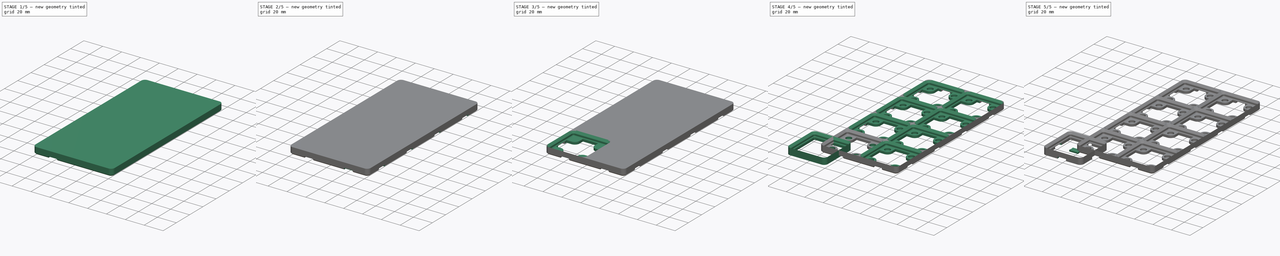
[diagram: build sequence overview — one tinted view per stage of 5, left to right]
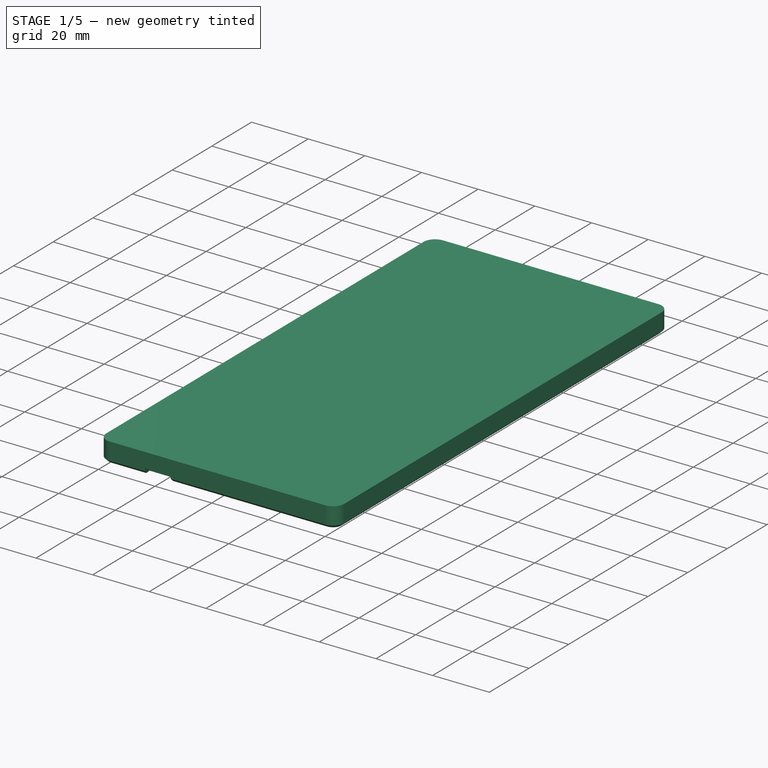
[diagram: stage 1 of 5 — iso view after this stage's code; geometry added in this stage tinted green]
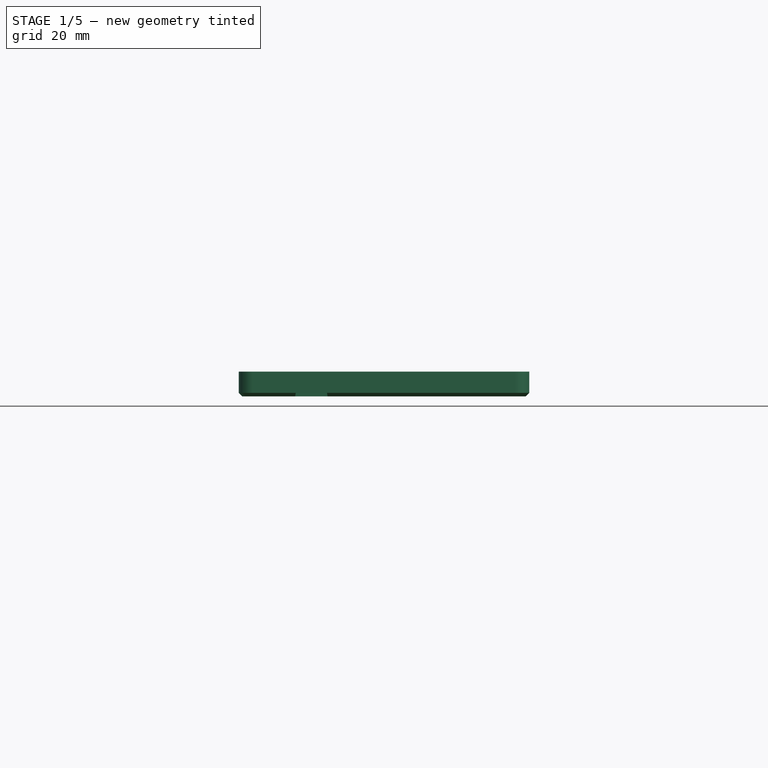
[diagram: stage 1 of 5 — front view after this stage's code; geometry added in this stage tinted green]
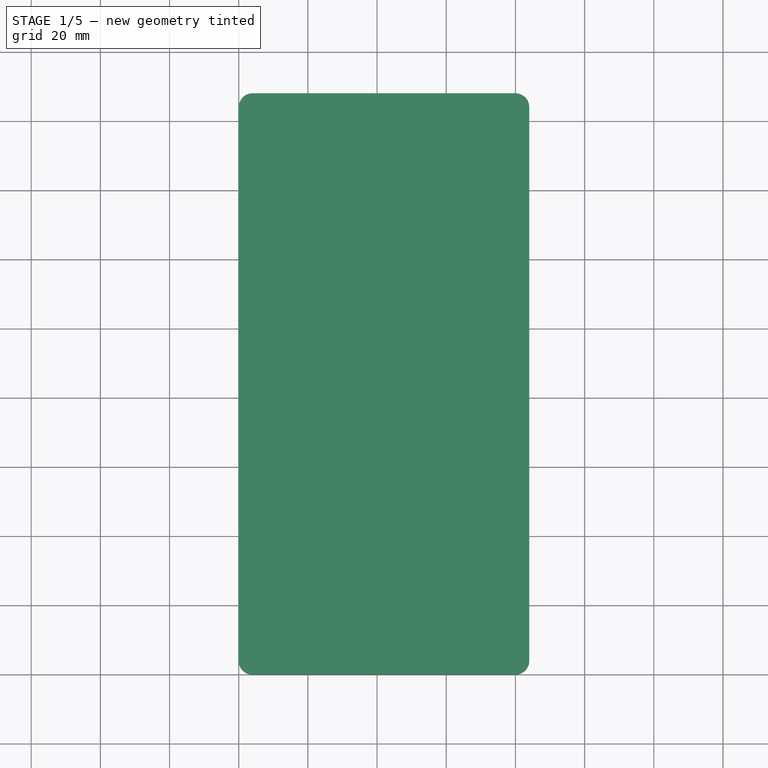
[diagram: stage 1 of 5 — top view after this stage's code; geometry added in this stage tinted green]
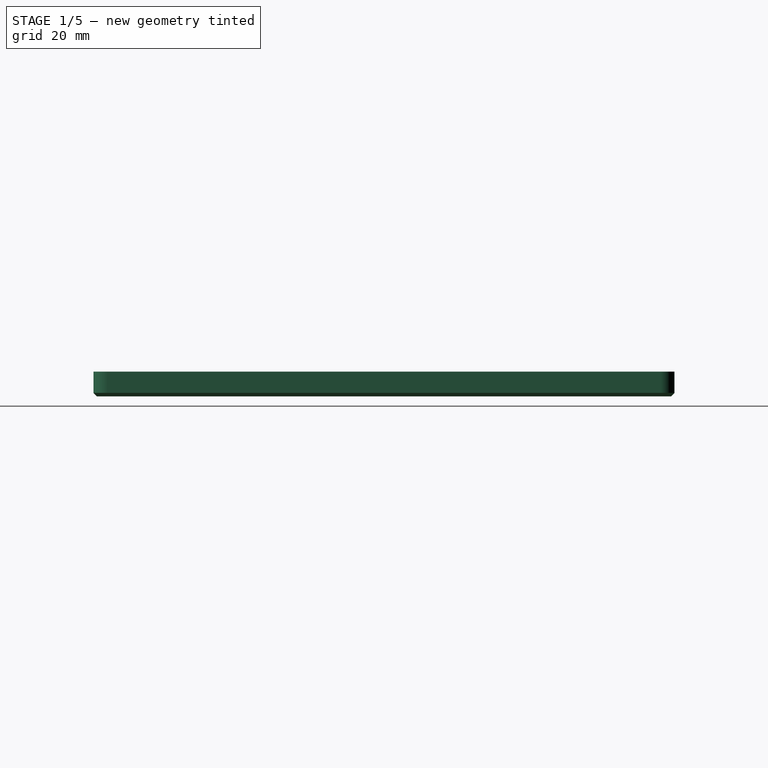
[diagram: stage 1 of 5 — right view after this stage's code; geometry added in this stage tinted green]
FCSTD DOCUMENT  (FreeCAD 0.20R29177 +426 (Git))
Label: Gridfinity-Fancy-Base
License: All rights reserved
LicenseURL: http://en.wikipedia.org/wiki/All_rights_reserved
objects: Sketcher::SketchObject×12, PartDesign::Pocket×5, PartDesign::LinearPattern×4, PartDesign::Pad×3, PartDesign::Body×3, PartDesign::Chamfer×2, PartDesign::AdditivePipe×1, Spreadsheet::Sheet×1, PartDesign::SubtractivePipe×1, PartDesign::MultiTransform×1
note: 44 computed .brp shape members not serialized (recipe doc carries the construction recipe); baked Part::Feature solids carry a one-line shape summary decoded from their .brp

FEATURE [PartDesign::Body] Body  label="1x1 Base"
  Group = -> [Sketch,Sketch001,AdditivePipe,Sketch004,Pocket]
  Origin = -> Origin
  Tip = -> Pocket
FEATURE [Sketcher::SketchObject] Sketch006  label="ParameterizedBasePath"
  FullyConstrained = true
  MapMode = 5
  Support = -> [XY_Plane004]
  expr: Constraints[22] = Spreadsheet.overall_x
  expr: Constraints[23] = Spreadsheet.overall_y
  sketch-geometry (10):
    g0: ArcOfCircle CenterX=4 CenterY=164 CenterZ=0 NormalX=0 NormalY=0 NormalZ=1 AngleXU=0 Radius=4 StartAngle=1.5708 EndAngle=3.14159
    g1: LineSegment StartX=4 StartY=168 StartZ=0 EndX=80 EndY=168 EndZ=0
    g2: ArcOfCircle CenterX=80 CenterY=164 CenterZ=0 NormalX=0 NormalY=0 NormalZ=1 AngleXU=0 Radius=4 StartAngle=-1.8e-15 EndAngle=1.5708
    g3: LineSegment StartX=84 StartY=164 StartZ=0 EndX=84 EndY=4 EndZ=0
    g4: ArcOfCircle CenterX=80 CenterY=4 CenterZ=0 NormalX=0 NormalY=0 NormalZ=1 AngleXU=0 Radius=4 StartAngle=4.71239 EndAngle=6.28319
    g5: LineSegment StartX=80 StartY=0 StartZ=0 EndX=4 EndY=0 EndZ=0
    g6: ArcOfCircle CenterX=4 CenterY=4 CenterZ=0 NormalX=0 NormalY=0 NormalZ=1 AngleXU=0 Radius=4 StartAngle=3.14159 EndAngle=4.71239
    g7: LineSegment StartX=0 StartY=4 StartZ=0 EndX=0 EndY=164 EndZ=0
    g8: GeomPoint X=0 Y=168 Z=0
    g9: GeomPoint X=84 Y=0 Z=0
  constraints (24):
    c: Tangent(g0,g1) = 1.5708
    c: Tangent(g1,g2) = 1.5708
    c: Tangent(g2,g3) = 1.5708
    c: Tangent(g3,g4) = 1.5708
    c: Tangent(g4,g5) = 1.5708
    c: Tangent(g5,g6) = 1.5708
    c: Tangent(g6,g7) = 1.5708
    c: Tangent(g7,g0) = 1.5708
    c: Horizontal(g1)
    c: Horizontal(g5)
    c: Vertical(g3)
    c: Vertical(g7)
    c: Equal(g0,g2)
    c: Equal(g2,g4)
    c: Equal(g4,g6)
    c: PointOnObject(g8,g1)
    c: PointOnObject(g8,g7)
    c: PointOnObject(g9,g3)
    c: PointOnObject(g9,g5)
    c: DistanceX(g4,g3) = 4
    c: DistanceX(g-1,g6) = 0
    c: DistanceY(g-1,g5) = 0
    c: DistanceX(g6,g3) = 84
    c: DistanceY(g5,g0) = 168
FEATURE [PartDesign::Pad] Pad001
  Direction = (0,0,1)
  Length = 7.15
  Length2 = 10
  Profile = -> Sketch006
  ReferenceAxis = -> Sketch006 [N_Axis]
  Type = 0
FEATURE [Sketcher::SketchObject] Sketch009  label="Path"
  AttachmentOffset = pos=(0,0,7.15) rot=(0,0,1;0rad)
  FullyConstrained = true
  MapMode = 2
  Placement = pos=(0,0,7.15) rot=(0,0,1;0rad)
  Support = -> [XY_Plane004]
  sketch-geometry (8):
    g0: ArcOfCircle CenterX=38 CenterY=38 CenterZ=0 NormalX=0 NormalY=0 NormalZ=1 AngleXU=0 Radius=4 StartAngle=4e-16 EndAngle=1.5708
    g1: LineSegment StartX=42 StartY=38 StartZ=0 EndX=42 EndY=4 EndZ=0
    g2: ArcOfCircle CenterX=38 CenterY=4 CenterZ=0 NormalX=0 NormalY=0 NormalZ=1 AngleXU=0 Radius=4 StartAngle=4.71239 EndAngle=6.28319
    g3: LineSegment StartX=38 StartY=0 StartZ=0 EndX=4 EndY=0 EndZ=0
    g4: ArcOfCircle CenterX=4 CenterY=4 CenterZ=0 NormalX=0 NormalY=0 NormalZ=1 AngleXU=0 Radius=4 StartAngle=3.14159 EndAngle=4.71239
    g5: LineSegment StartX=3.91e-14 StartY=4 StartZ=0 EndX=3.91e-14 EndY=38 EndZ=0
    g6: ArcOfCircle CenterX=4 CenterY=38 CenterZ=0 NormalX=0 NormalY=0 NormalZ=1 AngleXU=0 Radius=4 StartAngle=1.5708 EndAngle=3.14159
    g7: LineSegment StartX=4 StartY=42 StartZ=0 EndX=38 EndY=42 EndZ=0
  constraints (20):
    c: Tangent(g0,g1) = 1.5708
    c: Tangent(g1,g2) = 1.5708
    c: Tangent(g2,g3) = 1.5708
    c: Tangent(g3,g4) = 1.5708
    c: Tangent(g4,g5) = 1.5708
    c: Tangent(g5,g6) = 1.5708
    c: Tangent(g6,g7) = 1.5708
    c: Tangent(g7,g0) = 1.5708
    c: Horizontal(g3)
    c: Horizontal(g7)
    c: Vertical(g1)
    c: Vertical(g5)
    c: Equal(g0,g2)
    c: Equal(g2,g4)
    c: Equal(g4,g6)
    c: Radius(g6) = 4
    c: DistanceX(g5,g0) = 42
    c: DistanceY(g3,g6) = 42
    c: DistanceY(g3,g-1) = 0
    c: DistanceX(g4,g-1) = 0
FEATURE [Sketcher::SketchObject] Sketch010  label="NegativeProfile"
  AttachmentOffset = pos=(0,-7.15,-16) rot=(0,0,1;0rad)
  FullyConstrained = true
  MapMode = 3
  Placement = pos=(0,16,-3.6e-15) rot=(1,0,0;1.5708rad)
  Support = -> [Sketch009]
  sketch-geometry (5):
    g0: LineSegment StartX=0 StartY=7.15 StartZ=0 EndX=2.15 EndY=5 EndZ=0
    g1: LineSegment StartX=2.15 StartY=5 StartZ=0 EndX=2.15 EndY=3.2 EndZ=0
    g2: LineSegment StartX=2.15 StartY=3.2 StartZ=0 EndX=2.85 EndY=2.5 EndZ=0
    g3: LineSegment StartX=2.85 StartY=7.15 StartZ=0 EndX=0 EndY=7.15 EndZ=0
    g4: LineSegment StartX=2.85 StartY=2.5 StartZ=0 EndX=2.85 EndY=7.15 EndZ=0
  constraints (15):
    c: Coincident(g1,g0)
    c: Vertical(g1)
    c: Coincident(g2,g1)
    c: Distance(g1) = 1.8
    c: DistanceY(g2,g1) = 0.7
    c: DistanceY(g0,g0) = 2.15
    c: Coincident(g3,g0)
    c: Horizontal(g3)
    c: Angle(g0,g1) = 2.35619
    c: DistanceX(g0,g-1) = 0
    c: DistanceY(g-1,g0) = 7.15
    c: DistanceX(g1,g2) = 0.7
    c: Coincident(g4,g2)
    c: Coincident(g4,g3)
    c: Vertical(g4)
FEATURE [Sketcher::SketchObject] Sketch011  label="Dovetail_YAxis"
  FullyConstrained = true
  MapMode = 5
  Support = -> [XY_Plane004]
  expr: Constraints[10] = 90 - Spreadsheet.dovetail_angle
  expr: Constraints[14] = Spreadsheet.overall_y
  expr: Constraints[22] = 90 - Spreadsheet.dovetail_angle
  expr: Constraints[23] = 90 - Spreadsheet.dovetail_angle
  sketch-geometry (8):
    g0: LineSegment StartX=25.5231 StartY=-2.1668e-12 StartZ=0 EndX=16.4769 EndY=-2.1668e-12 EndZ=0
    g1: LineSegment StartX=16.4769 StartY=168 StartZ=0 EndX=25.5231 EndY=168 EndZ=0
    g2: LineSegment StartX=16 StartY=165.15 StartZ=0 EndX=26 EndY=165.15 EndZ=0
    g3: LineSegment StartX=16.4769 StartY=-2.1668e-12 StartZ=0 EndX=16 EndY=2.85 EndZ=0
    g4: LineSegment StartX=25.5231 StartY=-2.1668e-12 StartZ=0 EndX=26 EndY=2.85 EndZ=0
    g5: LineSegment StartX=26 StartY=2.85 StartZ=0 EndX=16 EndY=2.85 EndZ=0
    g6: LineSegment StartX=16.4769 StartY=168 StartZ=0 EndX=16 EndY=165.15 EndZ=0
    g7: LineSegment StartX=25.5231 StartY=168 StartZ=0 EndX=26 EndY=165.15 EndZ=0
  constraints (24):
    c: Horizontal(g0)
    c: Horizontal(g1)
    c: Horizontal(g2)
    c: Equal(g1,g0)
    c: Coincident(g3,g0)
    c: Coincident(g4,g0)
    c: Coincident(g5,g4)
    c: Coincident(g5,g3)
    c: Horizontal(g5)
    c: Equal(g5,g2)
    c: Angle(g5,g4) = 1.40499
    c: Equal(g4,g3)
    c: Distance(g2) = 10
    c: Distance(g0,g5) = 2.85
    c: DistanceY(g0,g1) = 168
    c: DistanceY(g0,g-1) = 0
    c: DistanceX(g-1,g3) = 16
    c: DistanceX(g-1,g2) = 16
    c: Coincident(g6,g1)
    c: Coincident(g6,g2)
    c: Coincident(g7,g1)
    c: Coincident(g7,g2)
    c: Angle(g2,g6) = 1.40499
    c: Angle(g7,g2) = 1.40499
FEATURE [Sketcher::SketchObject] Sketch012  label="Dovetail_XAxis"
  FullyConstrained = true
  MapMode = 5
  Support = -> [XY_Plane004]
  expr: Constraints[15] = Spreadsheet.overall_x
  expr: Constraints[18] = 90 - Spreadsheet.dovetail_angle
  expr: Constraints[20] = 90 - Spreadsheet.dovetail_angle
  expr: Constraints[22] = 90 - Spreadsheet.dovetail_angle
  sketch-geometry (8):
    g0: LineSegment StartX=84 StartY=25.5231 StartZ=0 EndX=84 EndY=16.4769 EndZ=0
    g1: LineSegment StartX=1.1282e-12 StartY=25.5231 StartZ=0 EndX=1.1282e-12 EndY=16.4769 EndZ=0
    g2: LineSegment StartX=2.85 StartY=26 StartZ=0 EndX=2.85 EndY=16 EndZ=0
    g3: LineSegment StartX=81.15 StartY=26 StartZ=0 EndX=81.15 EndY=16 EndZ=0
    g4: LineSegment StartX=81.15 StartY=16 StartZ=0 EndX=84 EndY=16.4769 EndZ=0
    g5: LineSegment StartX=84 StartY=25.5231 StartZ=0 EndX=81.15 EndY=26 EndZ=0
    g6: LineSegment StartX=2.85 StartY=26 StartZ=0 EndX=1.128e-12 EndY=25.5231 EndZ=0
    g7: LineSegment StartX=1.1282e-12 StartY=16.4769 StartZ=0 EndX=2.85 EndY=16 EndZ=0
  constraints (24):
    c: Vertical(g0)
    c: Vertical(g1)
    c: Vertical(g2)
    c: Vertical(g3)
    c: Coincident(g4,g3)
    c: Coincident(g4,g0)
    c: Coincident(g5,g0)
    c: Coincident(g5,g3)
    c: Coincident(g6,g2)
    c: Coincident(g6,g1)
    c: Coincident(g7,g1)
    c: Coincident(g7,g2)
    c: Equal(g1,g0)
    c: Equal(g2,g3)
    c: Distance(g2) = 10
    c: DistanceX(g1,g0) = 84
    c: DistanceX(g1,g-1) = 0
    c: Distance(g0,g3) = 2.85
    c: Angle(g6,g2) = 1.40499
    c: Distance(g1,g2) = 2.85
    c: Angle(g2,g7) = 1.40499
    c: DistanceY(g-1,g2) = 16
    c: Angle(g4,g3) = 1.40499
    c: DistanceY(g-1,g3) = 16
FEATURE [PartDesign::Chamfer] Chamfer001
  Angle = 45
  Base = -> Pad001 [Edge9,Edge6,Edge12,Edge15,Edge18,Edge21,Edge23,Edge3]
  BaseFeature = -> Pad001
  ChamferType = 0
  FlipDirection = false
  Size = 1
  Size2 = 1
  SupportTransform = false
  UseAllEdges = false
FEATURE [PartDesign::Pocket] Pocket001  label="Dovetail_Y"
  BaseFeature = -> Chamfer001
  Direction = (0,0,-1)
  Length = 2
  Length2 = 5
  Profile = -> Sketch011
  ReferenceAxis = -> Sketch011 [N_Axis]
  Reversed = true
  Type = 0
  expr: Length = Spreadsheet.dovetail_thickness
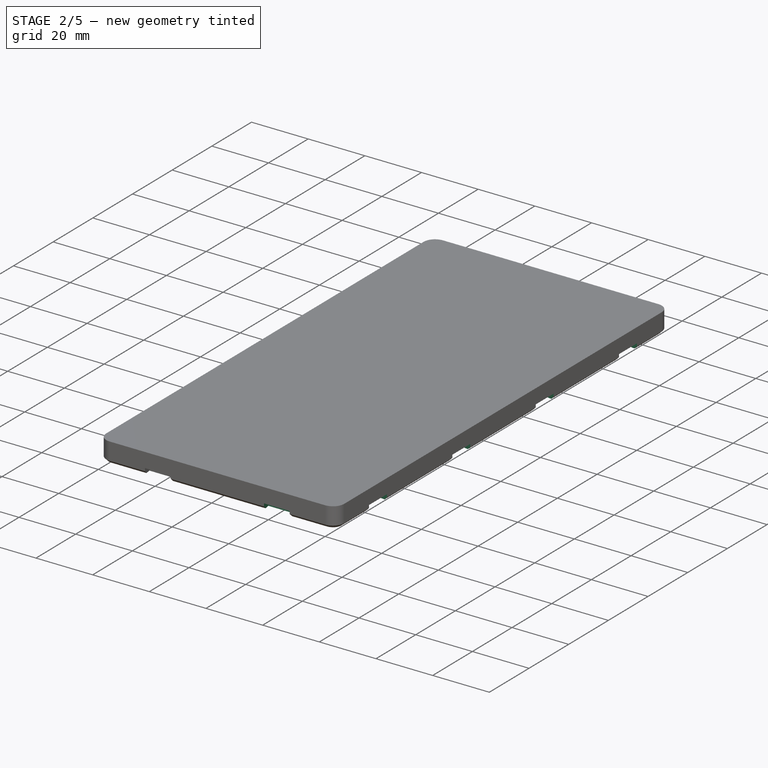
[diagram: stage 2 of 5 — iso view after this stage's code; geometry added in this stage tinted green]
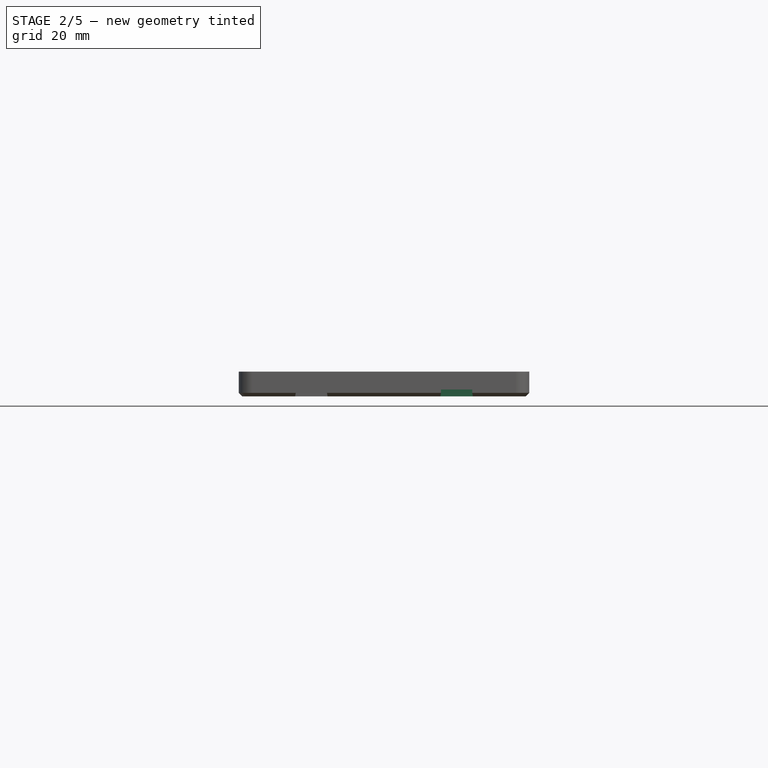
[diagram: stage 2 of 5 — front view after this stage's code; geometry added in this stage tinted green]
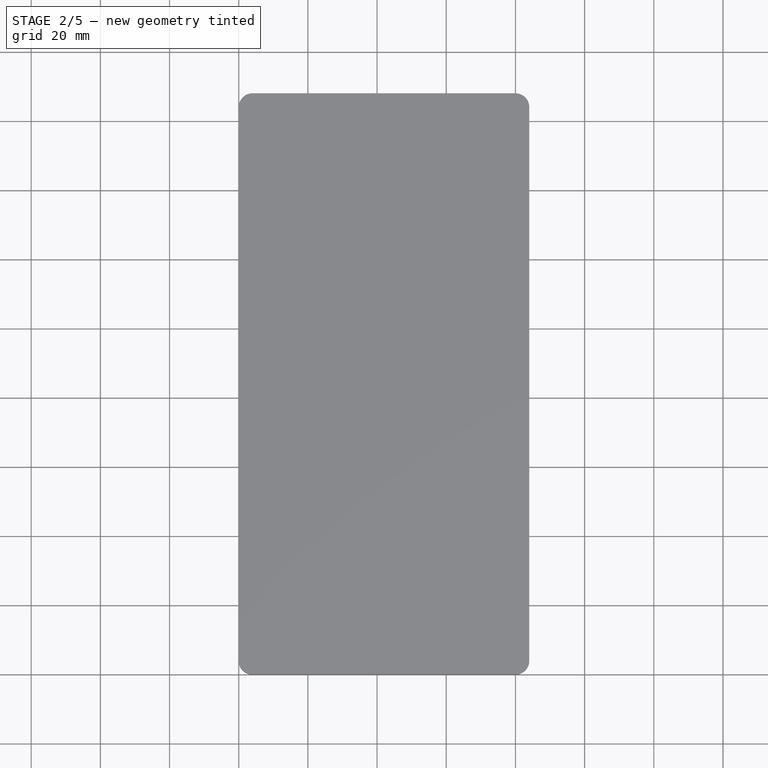
[diagram: stage 2 of 5 — top view after this stage's code; geometry added in this stage tinted green]
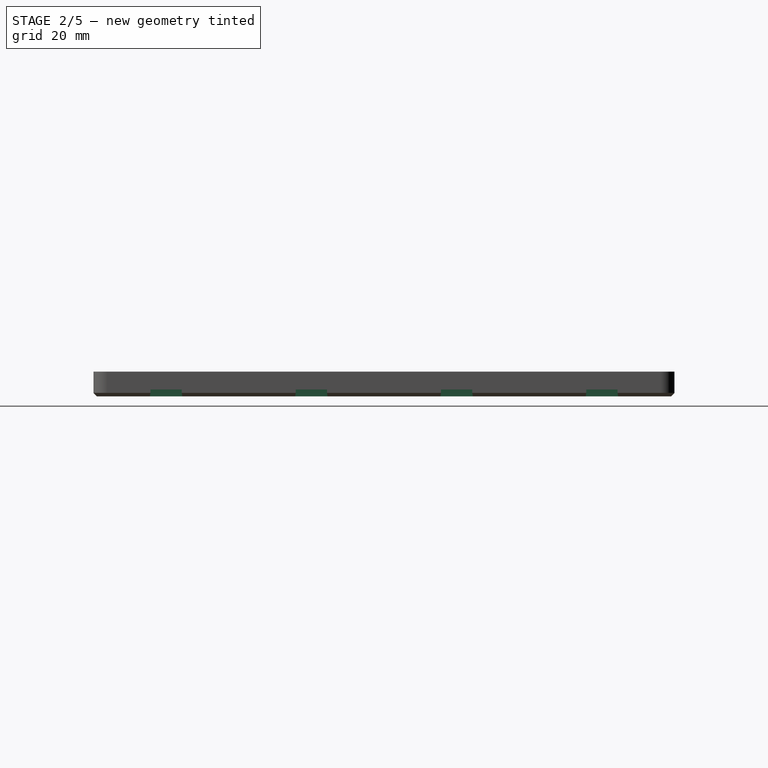
[diagram: stage 2 of 5 — right view after this stage's code; geometry added in this stage tinted green]
FEATURE [PartDesign::Pocket] Pocket002  label="Dovetail_X"
  BaseFeature = -> Pocket001
  Direction = (0,0,-1)
  Length = 2
  Length2 = 5
  Profile = -> Sketch012
  ReferenceAxis = -> Sketch012 [N_Axis]
  Reversed = true
  Type = 0
  expr: Length = Spreadsheet.dovetail_thickness
FEATURE [Sketcher::SketchObject] Sketch013
  AttachmentOffset = pos=(0,0,7.15) rot=(0,0,1;0rad)
  FullyConstrained = true
  MapMode = 5
  Placement = pos=(0,0,7.15) rot=(0,0,1;0rad)
  Support = -> [XY_Plane004]
  expr: Constraints[19] = 42 - (2.15 + 0.7) * 2
  expr: Constraints[20] = 2.15 + 0.7
  expr: Constraints[21] = 2.15 + 0.7
  expr: Constraints[22] = 42 - (2.15 + 0.7) * 2
  sketch-geometry (10):
    g0: ArcOfCircle CenterX=4 CenterY=4 CenterZ=0 NormalX=0 NormalY=0 NormalZ=1 AngleXU=0 Radius=1.15 StartAngle=3.14159 EndAngle=4.71239
    g1: LineSegment StartX=2.85 StartY=4 StartZ=0 EndX=2.85 EndY=38 EndZ=0
    g2: ArcOfCircle CenterX=4 CenterY=38 CenterZ=0 NormalX=0 NormalY=0 NormalZ=1 AngleXU=0 Radius=1.15 StartAngle=1.5708 EndAngle=3.14159
    g3: LineSegment StartX=4 StartY=39.15 StartZ=0 EndX=38 EndY=39.15 EndZ=0
    g4: ArcOfCircle CenterX=38 CenterY=38 CenterZ=0 NormalX=0 NormalY=0 NormalZ=1 AngleXU=0 Radius=1.15 StartAngle=3e-15 EndAngle=1.5708
    g5: LineSegment StartX=39.15 StartY=38 StartZ=0 EndX=39.15 EndY=4 EndZ=0
    g6: ArcOfCircle CenterX=38 CenterY=4 CenterZ=0 NormalX=0 NormalY=0 NormalZ=1 AngleXU=0 Radius=1.15 StartAngle=4.71239 EndAngle=6.28319
    g7: LineSegment StartX=38 StartY=2.85 StartZ=0 EndX=4 EndY=2.85 EndZ=0
    g8: GeomPoint X=2.85 Y=2.85 Z=0
    g9: GeomPoint X=39.15 Y=39.15 Z=0
  constraints (24):
    c: Tangent(g0,g1) = 1.5708
    c: Tangent(g1,g2) = 1.5708
    c: Tangent(g2,g3) = 1.5708
    c: Tangent(g3,g4) = 1.5708
    c: Tangent(g4,g5) = 1.5708
    c: Tangent(g5,g6) = 1.5708
    c: Tangent(g6,g7) = 1.5708
    c: Tangent(g7,g0) = 1.5708
    c: Horizontal(g3)
    c: Horizontal(g7)
    c: Vertical(g1)
    c: Vertical(g5)
    c: Equal(g0,g2)
    c: Equal(g2,g4)
    c: Equal(g4,g6)
    c: PointOnObject(g8,g1)
    c: PointOnObject(g8,g7)
    c: PointOnObject(g9,g3)
    c: PointOnObject(g9,g5)
    c: DistanceX(g1,g4) = 36.3
    c: DistanceX(g-1,g0) = 2.85
    c: DistanceY(g-1,g0) = 2.85
    c: DistanceY(g6,g3) = 36.3
    c: Diameter(g6) = 2.3
FEATURE [Sketcher::SketchObject] Sketch014
  AttachmentOffset = pos=(0,0,2.5) rot=(0,0,1;0rad)
  FullyConstrained = true
  MapMode = 5
  Placement = pos=(0,0,2.5) rot=(0,0,1;0rad)
  Support = -> [XY_Plane004]
  expr: Constraints[3] = Spreadsheet.magnet_dia + Spreadsheet.print_tolerance
  sketch-geometry (4):
    g0: Circle CenterX=8 CenterY=34 CenterZ=0 NormalX=0 NormalY=0 NormalZ=1 AngleXU=0 Radius=3.1
    g1: Circle CenterX=34 CenterY=34 CenterZ=0 NormalX=0 NormalY=0 NormalZ=1 AngleXU=0 Radius=3.1
    g2: Circle CenterX=34 CenterY=8 CenterZ=0 NormalX=0 NormalY=0 NormalZ=1 AngleXU=0 Radius=3.1
    g3: Circle CenterX=8 CenterY=8 CenterZ=0 NormalX=0 NormalY=0 NormalZ=1 AngleXU=0 Radius=3.1
  constraints (12):
    c: Equal(g0,g1)
    c: Equal(g1,g2)
    c: Equal(g2,g3)
    c: Diameter(g0) = 6.2
    c: DistanceX(g-1,g3) = 8
    c: DistanceY(g-1,g3) = 8
    c: DistanceY(g-1,g2) = 8
    c: DistanceX(g-1,g2) = 34
    c: DistanceX(g-1,g0) = 8
    c: DistanceY(g-1,g0) = 34
    c: DistanceY(g-1,g1) = 34
    c: DistanceX(g-1,g1) = 34
FEATURE [Sketcher::SketchObject] Sketch015
  FullyConstrained = true
  MapMode = 5
  Support = -> [XY_Plane004]
  sketch-geometry (20):
    g0: LineSegment StartX=2 StartY=29 StartZ=0 EndX=8 EndY=29 EndZ=0
    g1: LineSegment StartX=13 StartY=40 StartZ=0 EndX=13 EndY=34 EndZ=0
    g2: LineSegment StartX=13 StartY=40 StartZ=0 EndX=2 EndY=40 EndZ=0
    g3: LineSegment StartX=2 StartY=40 StartZ=0 EndX=2 EndY=29 EndZ=0
    g4: ArcOfCircle CenterX=8 CenterY=34 CenterZ=0 NormalX=0 NormalY=0 NormalZ=1 AngleXU=0 Radius=5 StartAngle=4.71239 EndAngle=6.28319
    g5: LineSegment StartX=29 StartY=40 StartZ=0 EndX=40 EndY=40 EndZ=0
    g6: LineSegment StartX=40 StartY=40 StartZ=0 EndX=40 EndY=29 EndZ=0
    g7: LineSegment StartX=40 StartY=29 StartZ=0 EndX=34 EndY=29 EndZ=0
    g8: LineSegment StartX=29 StartY=40 StartZ=0 EndX=29 EndY=34 EndZ=0
    g9: LineSegment StartX=29 StartY=8 StartZ=0 EndX=29 EndY=2 EndZ=0
    g10: LineSegment StartX=29 StartY=2 StartZ=0 EndX=40 EndY=2 EndZ=0
    g11: LineSegment StartX=40 StartY=2 StartZ=0 EndX=40 EndY=13 EndZ=0
    g12: LineSegment StartX=40 StartY=13 StartZ=0 EndX=34 EndY=13 EndZ=0
    g13: LineSegment StartX=13 StartY=8 StartZ=0 EndX=13 EndY=2 EndZ=0
    g14: LineSegment StartX=13 StartY=2 StartZ=0 EndX=2 EndY=2 EndZ=0
    g15: LineSegment StartX=2 StartY=2 StartZ=0 EndX=2 EndY=13 EndZ=0
    g16: LineSegment StartX=2 StartY=13 StartZ=0 EndX=8 EndY=13 EndZ=0
    g17: ArcOfCircle CenterX=8 CenterY=8 CenterZ=0 NormalX=0 NormalY=0 NormalZ=1 AngleXU=0 Radius=5 StartAngle=2e-16 EndAngle=1.5708
    g18: ArcOfCircle CenterX=34 CenterY=8 CenterZ=0 NormalX=0 NormalY=0 NormalZ=1 AngleXU=0 Radius=5 StartAngle=1.5708 EndAngle=3.14159
    g19: ArcOfCircle CenterX=34 CenterY=34 CenterZ=0 NormalX=0 NormalY=0 NormalZ=1 AngleXU=0 Radius=5 StartAngle=3.14159 EndAngle=4.71239
  constraints (64):
    c: Horizontal(g0)
    c: Vertical(g1)
    c: Coincident(g2,g1)
    c: Horizontal(g2)
    c: Coincident(g3,g2)
    c: Coincident(g3,g0)
    c: Vertical(g3)
    c: Coincident(g4,g0)
    c: Coincident(g4,g1)
    c: DistanceX(g-1,g4) = 8
    c: DistanceY(g-1,g4) = 34
    c: DistanceX(g-1,g0) = 8
    c: DistanceY(g-1,g1) = 34
    c: DistanceX(g-1,g1) = 13
    c: Equal(g0,g1)
    c: Distance(g2) = 11
    c: Horizontal(g5)
    c: Coincident(g6,g5)
    c: Vertical(g6)
    c: Coincident(g7,g6)
    c: Horizontal(g7)
    c: Coincident(g8,g5)
    c: Vertical(g8)
    c: Vertical(g9)
    c: Coincident(g10,g9)
    c: Horizontal(g10)
    c: Coincident(g11,g10)
    c: Vertical(g11)
    c: Coincident(g12,g11)
    c: Horizontal(g12)
    c: Vertical(g13)
    c: Coincident(g14,g13)
    c: Horizontal(g14)
    c: Coincident(g15,g14)
    c: Vertical(g15)
    c: Coincident(g16,g15)
    c: Horizontal(g16)
    c: Coincident(g17,g13)
    c: Coincident(g17,g16)
    c: Coincident(g18,g9)
    c: Coincident(g18,g12)
    c: Coincident(g19,g7)
    c: Coincident(g19,g8)
    c: Equal(g2,g5)
    c: Equal(g5,g10)
    c: Equal(g10,g14)
    c: Equal(g4,g19)
    c: Equal(g19,g18)
    c: Equal(g18,g17)
    c: DistanceX(g-1,g17) = 8
    c: DistanceY(g-1,g17) = 8
    c: DistanceY(g-1,g18) = 8
    c: DistanceX(g-1,g18) = 34
    c: DistanceX(g-1,g19) = 34
    c: DistanceY(g-1,g19) = 34
    c: Equal(g13,g16)
    c: Equal(g16,g0)
    c: Equal(g0,g8)
    c: Equal(g8,g7)
    c: Equal(g7,g12)
    c: Equal(g12,g9)
    c: Equal(g6,g5)
    c: Equal(g5,g11)
    c: Equal(g11,g15)
FEATURE [PartDesign::LinearPattern] LinearPattern002
  Direction = -> X_Axis003
  Length = 42
  Occurrences = 2
  expr: Length = Spreadsheet.scaled_x
  expr: Occurrences = Spreadsheet.x_count
FEATURE [PartDesign::LinearPattern] LinearPattern003
  Direction = -> Y_Axis003
  Length = 126
  Occurrences = 4
  expr: Length = Spreadsheet.scaled_y
  expr: Occurrences = Spreadsheet.y_count
FEATURE [PartDesign::LinearPattern] LinearPattern
  BaseFeature = -> Pocket002
  Direction = -> Y_Axis003
  Length = 126
  Occurrences = 4
  Originals = -> [Pocket002]
  expr: Length = Spreadsheet.scaled_y
  expr: Occurrences = Spreadsheet.y_count
FEATURE [PartDesign::LinearPattern] LinearPattern001
  BaseFeature = -> LinearPattern
  Direction = -> X_Axis003
  Length = 42
  Occurrences = 2
  Originals = -> [Pocket001]
  expr: Length = Spreadsheet.scaled_x
  expr: Occurrences = Spreadsheet.x_count
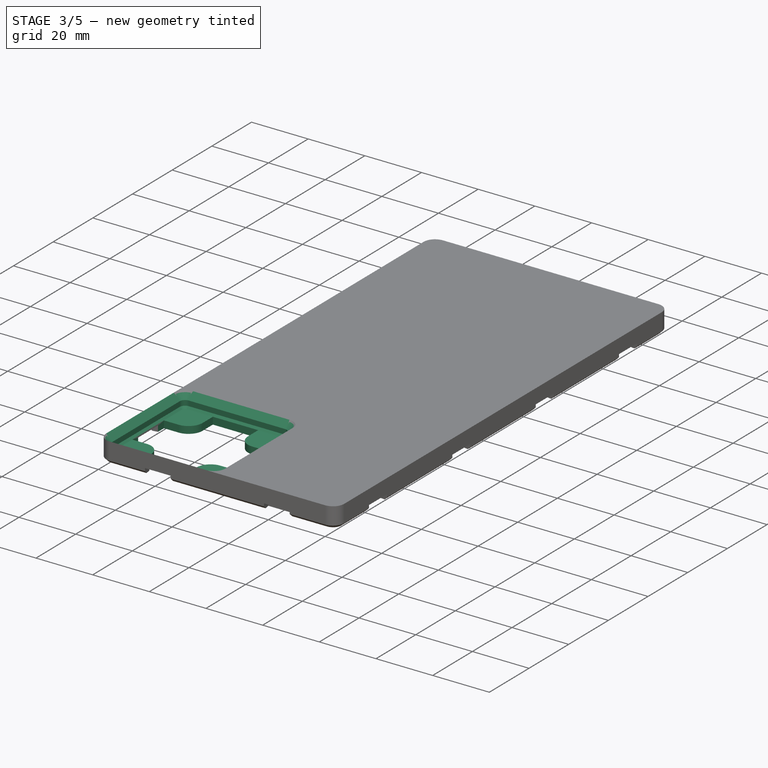
[diagram: stage 3 of 5 — iso view after this stage's code; geometry added in this stage tinted green]
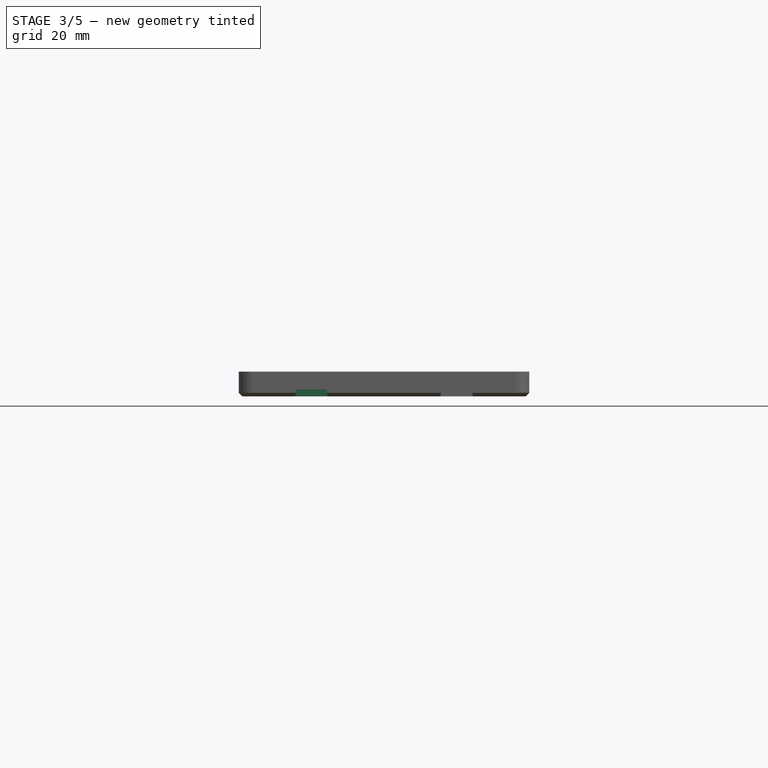
[diagram: stage 3 of 5 — front view after this stage's code; geometry added in this stage tinted green]
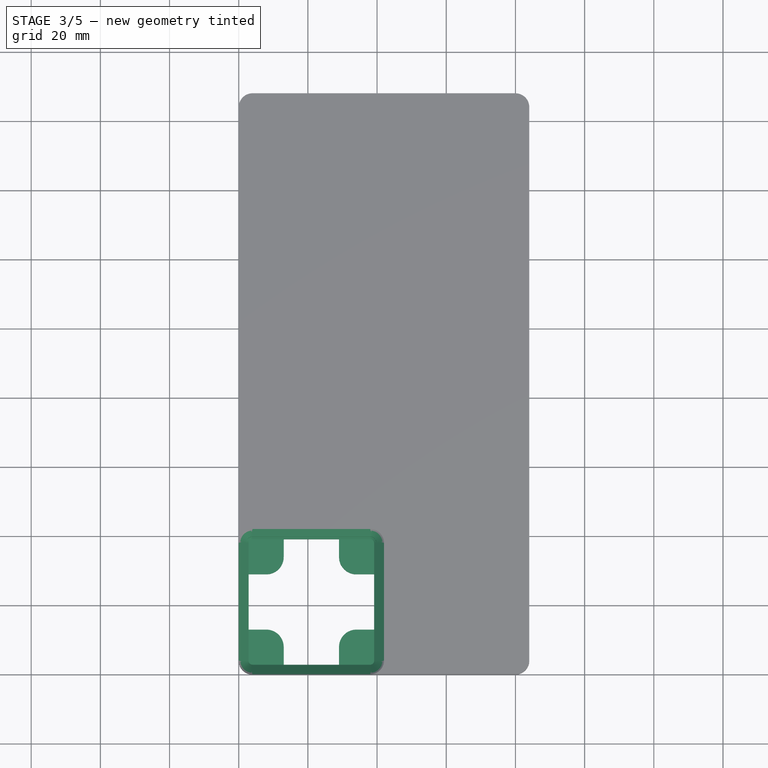
[diagram: stage 3 of 5 — top view after this stage's code; geometry added in this stage tinted green]
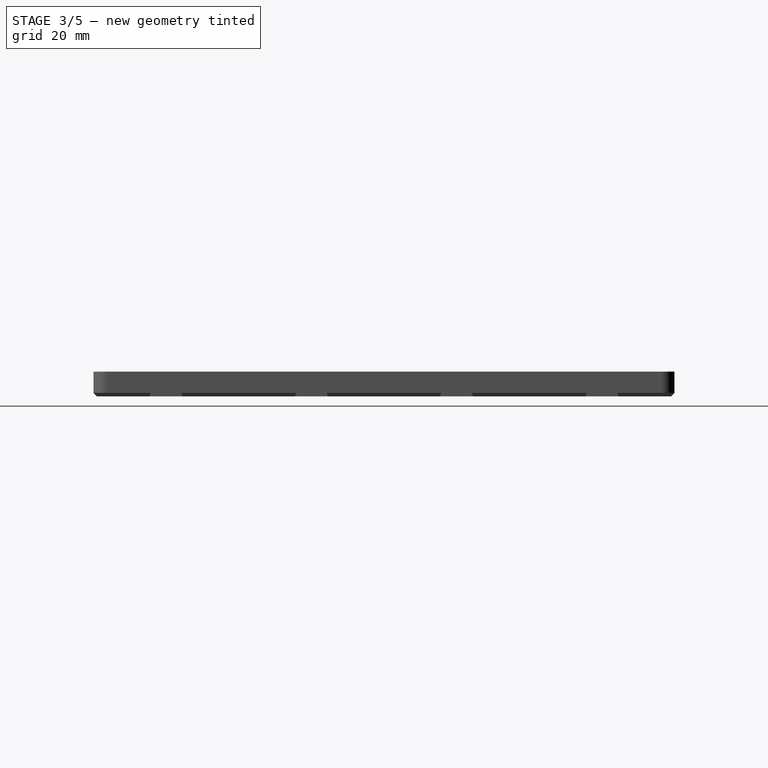
[diagram: stage 3 of 5 — right view after this stage's code; geometry added in this stage tinted green]
FEATURE [PartDesign::SubtractivePipe] SubtractivePipe
  AuxilleryCurvelinear = true
  AuxillerySpineTangent = false
  BaseFeature = -> LinearPattern001
  Binormal = (0,0,0)
  Mode = 0
  Profile = -> Sketch010
  Spine = -> Sketch009
  SpineTangent = false
  Transformation = 0
  Transition = 0
FEATURE [PartDesign::Pocket] Pocket003
  BaseFeature = -> SubtractivePipe
  Direction = (0,0,-1)
  Length = 8
  Length2 = 5
  Profile = -> Sketch013
  ReferenceAxis = -> Sketch013 [N_Axis]
  Type = 1
FEATURE [PartDesign::Pad] Pad002
  BaseFeature = -> Pocket003
  Direction = (0,0,1)
  Length = 2.5
  Length2 = 10
  Profile = -> Sketch015
  ReferenceAxis = -> Sketch015 [N_Axis]
  Type = 0
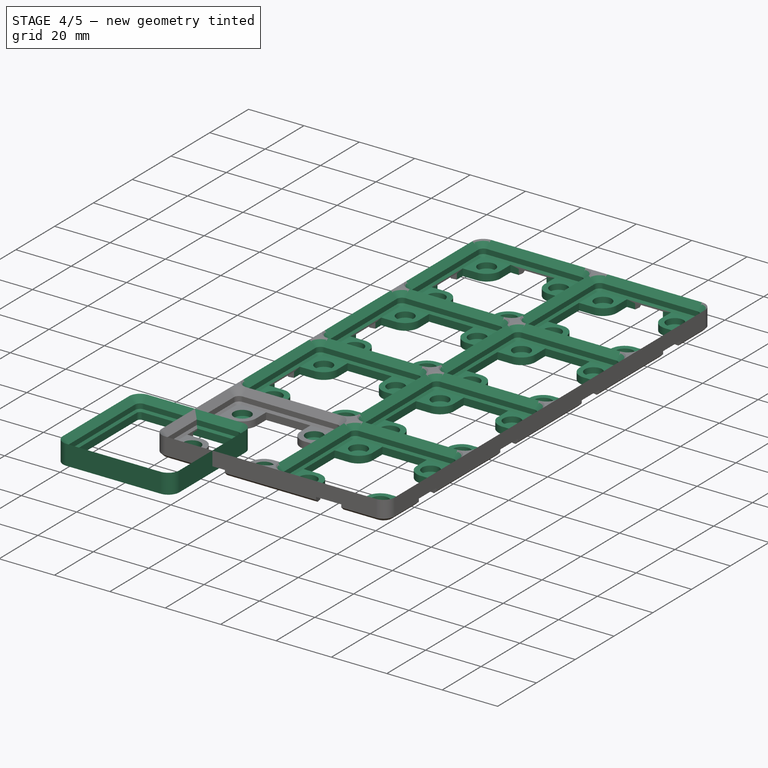
[diagram: stage 4 of 5 — iso view after this stage's code; geometry added in this stage tinted green]
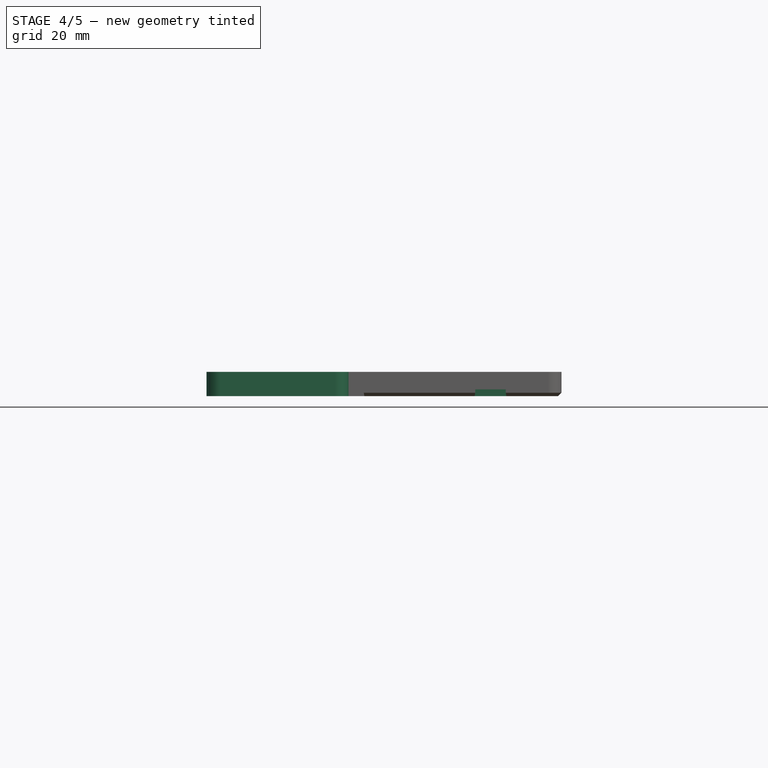
[diagram: stage 4 of 5 — front view after this stage's code; geometry added in this stage tinted green]
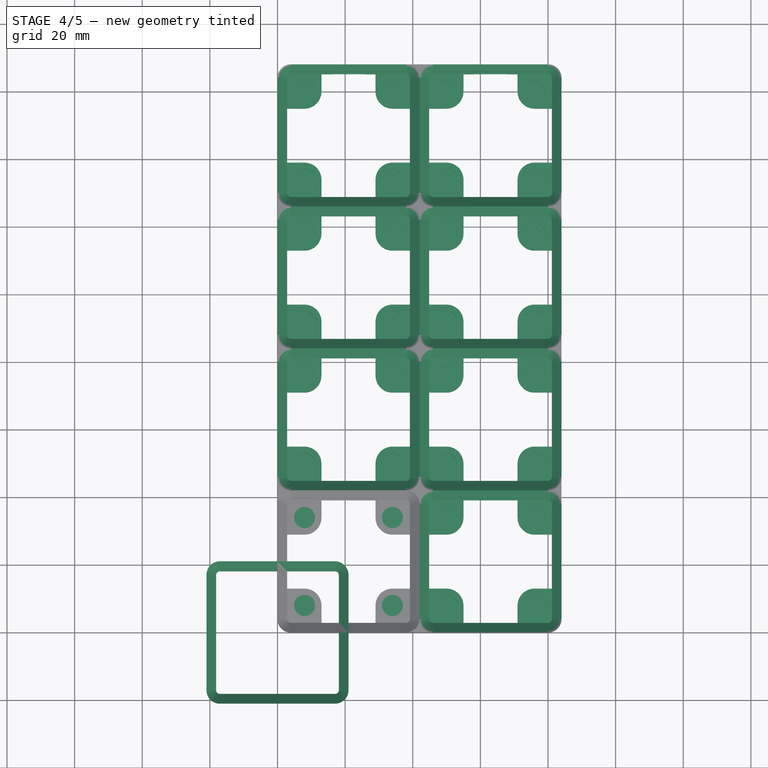
[diagram: stage 4 of 5 — top view after this stage's code; geometry added in this stage tinted green]
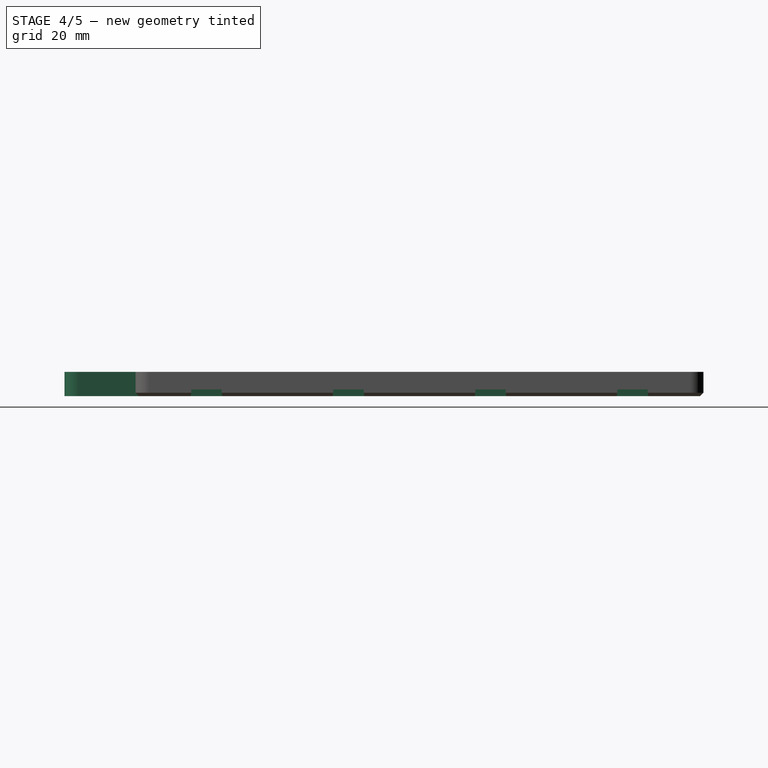
[diagram: stage 4 of 5 — right view after this stage's code; geometry added in this stage tinted green]
FEATURE [Sketcher::SketchObject] Sketch  label="BaseplatePath"
  FullyConstrained = true
  MapMode = 5
  Support = -> [XY_Plane]
  sketch-geometry (9):
    g0: ArcOfCircle CenterX=17 CenterY=-17 CenterZ=0 NormalX=0 NormalY=0 NormalZ=1 AngleXU=0 Radius=4 StartAngle=4.71239 EndAngle=6.28319
    g1: LineSegment StartX=21 StartY=-17 StartZ=0 EndX=21 EndY=17 EndZ=0
    g2: LineSegment StartX=17 StartY=-21 StartZ=0 EndX=-17 EndY=-21 EndZ=0
    g3: ArcOfCircle CenterX=-17 CenterY=-17 CenterZ=0 NormalX=0 NormalY=0 NormalZ=1 AngleXU=0 Radius=4 StartAngle=3.14159 EndAngle=4.71239
    g4: ArcOfCircle CenterX=-17 CenterY=17 CenterZ=0 NormalX=0 NormalY=0 NormalZ=1 AngleXU=0 Radius=4 StartAngle=1.5708 EndAngle=3.14159
    g5: ArcOfCircle CenterX=17 CenterY=17 CenterZ=0 NormalX=0 NormalY=0 NormalZ=1 AngleXU=0 Radius=4 StartAngle=0 EndAngle=1.5708
    g6: GeomPoint X=21 Y=17 Z=0
    g7: LineSegment StartX=17 StartY=21 StartZ=0 EndX=-17 EndY=21 EndZ=0
    g8: LineSegment StartX=-21 StartY=17 StartZ=0 EndX=-21 EndY=-17 EndZ=0
  constraints (29):
    c: Radius(g0) = 4
    c: Coincident(g1,g0)
    c: Vertical(g1)
    c: Coincident(g2,g0)
    c: Horizontal(g2)
    c: Coincident(g6,g5)
    c: Coincident(g5,g1)
    c: Radius(g3) = 4
    c: Radius(g4) = 4
    c: Radius(g5) = 4
    c: Coincident(g7,g5)
    c: Horizontal(g7)
    c: Vertical(g8)
    c: Coincident(g4,g7)
    c: Coincident(g4,g8)
    c: Angle(g0) = 1.5708
    c: Angle(g4) = 1.5708
    c: Angle(g3) = 1.5708
    c: Angle(g5) = 1.5708
    c: Coincident(g3,g8)
    c: Coincident(g3,g2)
    c: Distance(g-1,g7) = 21
    c: Distance(g-1,g1) = 21
    c: DistanceX(g4,g1) = 42
    c: DistanceY(g2,g4) = 42
    c: Angle(g1,g5,g1) = 0
    c: Angle(g1,g0,g0) = 0
    c: Angle(g3,g2,g2) = 3.14159
    c: Angle(g4,g7,g4) = 0
FEATURE [Sketcher::SketchObject] Sketch001  label="Profile"
  FullyConstrained = true
  MapMode = 5
  Placement = pos=(0,0,0) rot=(1,0,0;1.5708rad)
  Support = -> [XZ_Plane]
  sketch-geometry (6):
    g0: LineSegment StartX=-21 StartY=0 StartZ=0 EndX=-21 EndY=7.15 EndZ=0
    g1: LineSegment StartX=-21 StartY=7.15 StartZ=0 EndX=-18.85 EndY=5 EndZ=0
    g2: LineSegment StartX=-18.85 StartY=5 StartZ=0 EndX=-18.85 EndY=3.2 EndZ=0
    g3: LineSegment StartX=-18.85 StartY=3.2 StartZ=0 EndX=-18.15 EndY=2.5 EndZ=0
    g4: LineSegment StartX=-21 StartY=0 StartZ=0 EndX=-18.15 EndY=0 EndZ=0
    g5: LineSegment StartX=-18.15 StartY=0 StartZ=0 EndX=-18.15 EndY=2.5 EndZ=0
  constraints (18):
    c: Vertical(g0)
    c: Coincident(g1,g0)
    c: Vertical(g2)
    c: Angle(g0,g1) = 0.785398
    c: Coincident(g1,g2)
    c: Coincident(g2,g3)
    c: DistanceY(g2,g1) = 1.8
    c: DistanceY(g1,g0) = 2.15
    c: Horizontal(g4)
    c: Coincident(g5,g4)
    c: Coincident(g5,g3)
    c: DistanceY(g-1,g4) = 0
    c: DistanceY(g3,g2) = 0.7
    c: Coincident(g0,g4)
    c: DistanceX(g0,g-1) = 21
    c: DistanceY(g4,g3) = 2.5
    c: Distance(g3,g0) = 2.85
    c: Vertical(g5)
FEATURE [PartDesign::AdditivePipe] AdditivePipe  label="BasePlate"
  AuxilleryCurvelinear = true
  AuxillerySpineTangent = false
  Binormal = (0,0,0)
  Mode = 0
  Placement = pos=(0,0,0) rot=(1,0,0;1.5708rad)
  Profile = -> Sketch001 [Edge1]
  Spine = -> Sketch
  SpineTangent = false
  Transformation = 0
  Transition = 2
FEATURE [PartDesign::Pocket] Pocket004
  BaseFeature = -> Pad002
  Direction = (0,0,-1)
  Length = 2
  Length2 = 5
  Profile = -> Sketch014
  ReferenceAxis = -> Sketch014 [N_Axis]
  Type = 0
  expr: Length = Spreadsheet.magnet_thickness
FEATURE [PartDesign::MultiTransform] MultiTransform
  BaseFeature = -> Pocket004
  Originals = -> [SubtractivePipe,Pocket003,Pad002,Pocket004]
  Transformations = -> [LinearPattern002,LinearPattern003]
FEATURE [PartDesign::Body] Body003  label="MxN Magnetic Base"
  Group = -> [Sketch006,Pad001,Chamfer001,Sketch009,Sketch010,Sketch011,Sketch012,Pocket001,Pocket002,LinearPattern,LinearPattern001,SubtractivePipe,Sketch013,Pocket003,Sketch014,Sketch015,Pad002,Pocket004,MultiTransform,LinearPattern002,LinearPattern003]
  Origin = -> Origin003
  Tip = -> MultiTransform
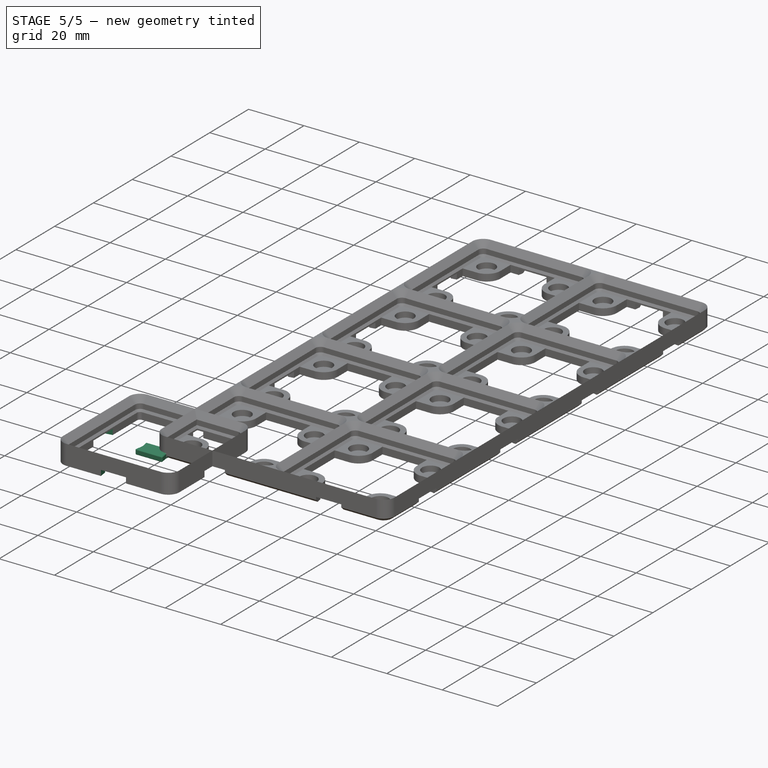
[diagram: stage 5 of 5 — iso view after this stage's code; geometry added in this stage tinted green]
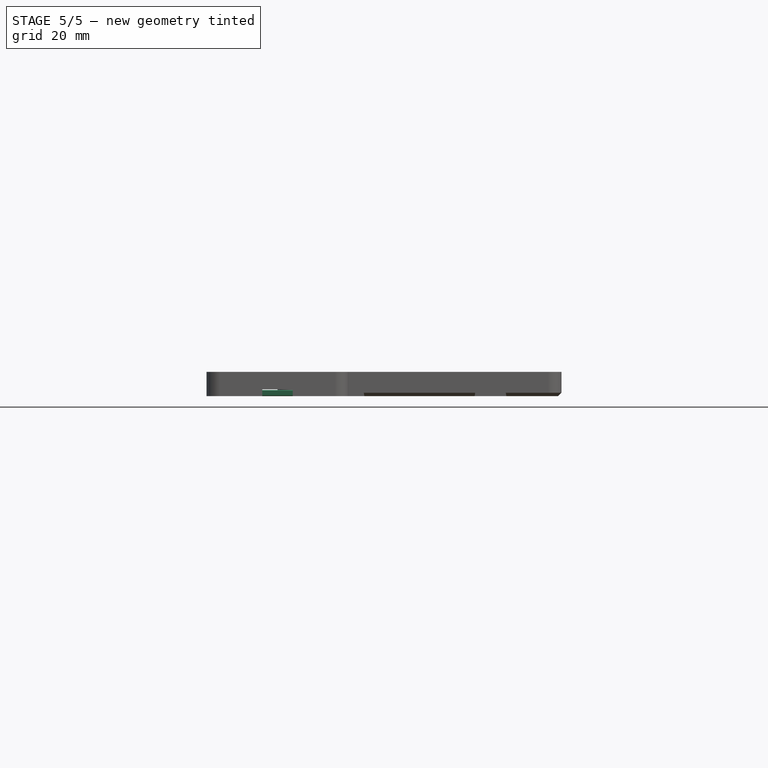
[diagram: stage 5 of 5 — front view after this stage's code; geometry added in this stage tinted green]
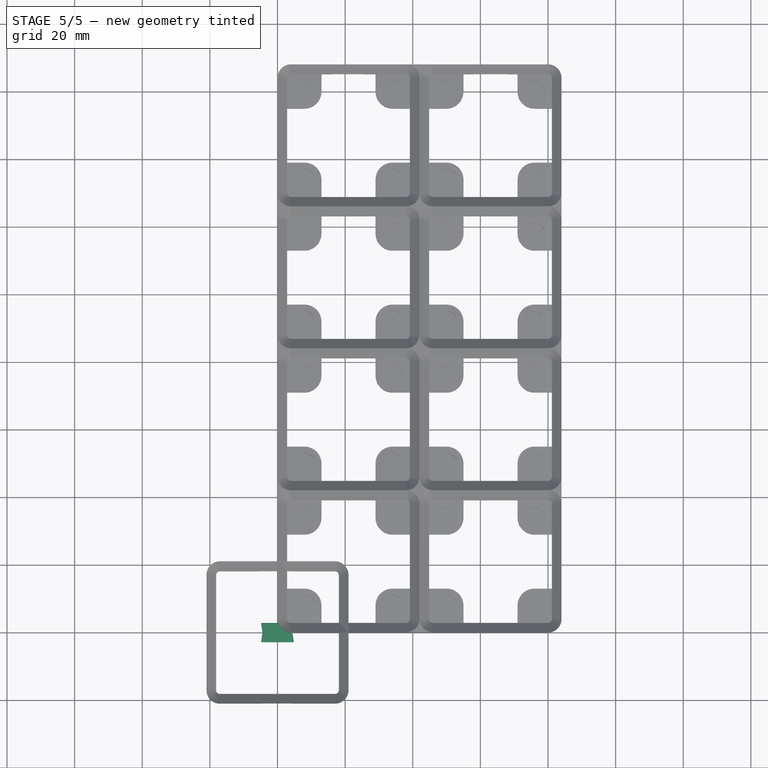
[diagram: stage 5 of 5 — top view after this stage's code; geometry added in this stage tinted green]
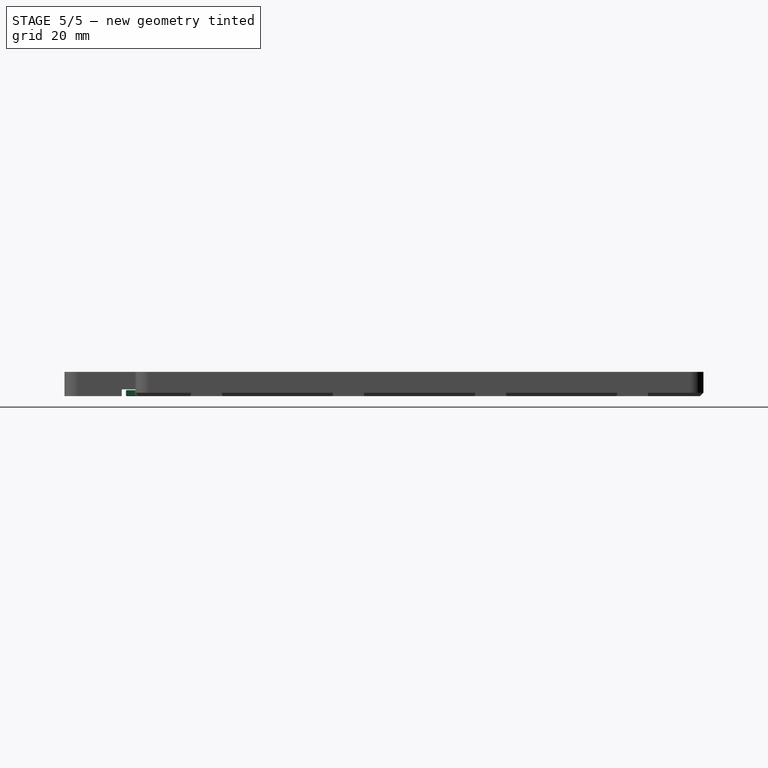
[diagram: stage 5 of 5 — right view after this stage's code; geometry added in this stage tinted green]
FEATURE [Sketcher::SketchObject] Sketch004
  FullyConstrained = true
  MapMode = 5
  Placement = pos=(0,0,0) rot=(1,0,0;3.14159rad)
  Support = -> [AdditivePipe]
  sketch-geometry (16):
    g0: LineSegment StartX=-4.52307 StartY=-21 StartZ=0 EndX=4.52307 EndY=-21 EndZ=0
    g1: LineSegment StartX=4.52307 StartY=-21 StartZ=0 EndX=5 EndY=-18.15 EndZ=0
    g2: LineSegment StartX=5 StartY=-18.15 StartZ=0 EndX=-5 EndY=-18.15 EndZ=0
    g3: LineSegment StartX=-5 StartY=-18.15 StartZ=0 EndX=-4.52307 EndY=-21 EndZ=0
    g4: LineSegment StartX=-18.15 StartY=-4.52307 StartZ=0 EndX=-18.15 EndY=5.47693 EndZ=0
    g5: LineSegment StartX=-18.15 StartY=5.47693 StartZ=0 EndX=-21 EndY=5 EndZ=0
    g6: LineSegment StartX=-21 StartY=5 StartZ=0 EndX=-21 EndY=-4.04615 EndZ=0
    g7: LineSegment StartX=-21 StartY=-4.04615 StartZ=0 EndX=-18.15 EndY=-4.52307 EndZ=0
    g8: LineSegment StartX=18.15 StartY=4.52307 StartZ=0 EndX=18.15 EndY=-5.47693 EndZ=0
    g9: LineSegment StartX=18.15 StartY=-5.47693 StartZ=0 EndX=21 EndY=-5 EndZ=0
    g10: LineSegment StartX=21 StartY=-5 StartZ=0 EndX=21 EndY=4.04615 EndZ=0
    g11: LineSegment StartX=21 StartY=4.04615 StartZ=0 EndX=18.15 EndY=4.52307 EndZ=0
    g12: LineSegment StartX=4.52307 StartY=21 StartZ=0 EndX=-4.52307 EndY=21 EndZ=0
    g13: LineSegment StartX=-4.52307 StartY=21 StartZ=0 EndX=-5 EndY=18.15 EndZ=0
    g14: LineSegment StartX=-5 StartY=18.15 StartZ=0 EndX=5 EndY=18.15 EndZ=0
    g15: LineSegment StartX=5 StartY=18.15 StartZ=0 EndX=4.52307 EndY=21 EndZ=0
  constraints (48):
    c: Horizontal(g0)
    c: Coincident(g1,g0)
    c: Coincident(g2,g1)
    c: Horizontal(g2)
    c: Coincident(g3,g0)
    c: Angle(g1,g0) = 1.7366
    c: Angle(g0,g3) = 1.7366
    c: Coincident(g2,g3)
    c: DistanceY(g0,g1) = 2.85
    c: DistanceX(g2,g1) = 10
    c: DistanceX(g-1,g1) = 5
    c: DistanceY(g0,g-1) = 21
    c: Vertical(g4)
    c: Vertical(g6)
    c: Coincident(g7,g4)
    c: Coincident(g4,g5)
    c: Coincident(g6,g5)
    c: Coincident(g7,g6)
    c: Vertical(g8)
    c: Coincident(g9,g8)
    c: Coincident(g10,g9)
    c: Vertical(g10)
    c: Coincident(g11,g10)
    c: Coincident(g11,g8)
    c: Horizontal(g12)
    c: Coincident(g13,g12)
    c: Coincident(g14,g13)
    c: Horizontal(g14)
    c: Coincident(g15,g14)
    c: Coincident(g15,g12)
    c: Angle(g12,g15) = 1.7366
    c: Angle(g13,g12) = 1.7366
    c: DistanceY(g14,g12) = 2.85
    c: DistanceY(g-1,g12) = 21
    c: DistanceX(g-1,g14) = 5
    c: Angle(g11,g10) = 1.7366
    c: Angle(g10,g9) = 1.7366
    c: Angle(g6,g5) = 1.7366
    c: Angle(g7,g6) = 1.7366
    c: Equal(g14,g8)
    c: Equal(g8,g2)
    c: Equal(g2,g4)
    c: Equal(g9,g1)
    c: Equal(g1,g7)
    c: DistanceY(g9,g-1) = 5
    c: DistanceX(g-1,g10) = 21
    c: DistanceX(g5,g-1) = 21
    c: DistanceY(g-1,g5) = 5
FEATURE [Sketcher::SketchObject] Sketch005
  FullyConstrained = true
  MapMode = 5
  Support = -> [XY_Plane003]
  expr: Constraints[17] = 9.75 / 2
  sketch-geometry (6):
    g0: LineSegment StartX=-4.875 StartY=-2.85 StartZ=0 EndX=4.875 EndY=-2.85 EndZ=0
    g1: LineSegment StartX=4.875 StartY=-2.85 StartZ=0 EndX=4.39807 EndY=0 EndZ=0
    g2: LineSegment StartX=4.39807 StartY=0 StartZ=0 EndX=4.875 EndY=2.85 EndZ=0
    g3: LineSegment StartX=4.875 StartY=2.85 StartZ=0 EndX=-4.875 EndY=2.85 EndZ=0
    g4: LineSegment StartX=-4.875 StartY=2.85 StartZ=0 EndX=-4.39807 EndY=0 EndZ=0
    g5: LineSegment StartX=-4.39807 StartY=0 StartZ=0 EndX=-4.875 EndY=-2.85 EndZ=0
  constraints (18):
    c: Horizontal(g0)
    c: Coincident(g1,g0)
    c: Coincident(g2,g1)
    c: Coincident(g3,g2)
    c: Horizontal(g3)
    c: Coincident(g4,g3)
    c: Coincident(g5,g4)
    c: Coincident(g5,g0)
    c: Equal(g3,g0)
    c: Equal(g4,g1)
    c: Parallel(g4,g1)
    c: DistanceY(g1,g2) = 2.85
    c: Equal(g2,g1)
    c: Angle(g1,g0) = 1.40499
    c: Angle(g3,g2) = 1.40499
    c: Distance(g3) = 9.75
    c: DistanceY(g-1,g2) = 2.85
    c: DistanceX(g-1,g2) = 4.875
FEATURE [PartDesign::Pad] Pad
  Direction = (0,0,1)
  Length = 1.8
  Length2 = 10
  Profile = -> Sketch005
  ReferenceAxis = -> Sketch005 [N_Axis]
  Type = 0
  expr: Length = Spreadsheet.bowtie_thickness
FEATURE [PartDesign::Chamfer] Chamfer
  Angle = 45
  Base = -> Pad [Edge13]
  BaseFeature = -> Pad
  ChamferType = 0
  FlipDirection = false
  Size = 0.2
  Size2 = 1
  SupportTransform = false
  UseAllEdges = true
FEATURE [PartDesign::Body] Body002  label="Bowtie"
  Group = -> [Sketch005,Pad,Chamfer]
  Origin = -> Origin002
  Tip = -> Chamfer
FEATURE [Spreadsheet::Sheet] Spreadsheet
  cells = A1=x_count; B1(x_count)=2; E1=dovetail_angle; F1(dovetail_angle)=9.5; H1=outer_width; I1(outer_width)=42; K1=overall_x; L1(overall_x)==outer_width * x_count; A2=y_count; B2(y_count)=4; E2=bowtie_thickness; F2(bowtie_thickness)==$F3 - $F4; K2=overall_y; L2(overall_y)==outer_width * y_count; A3=magnet_dia; B3(magnet_dia)=6; E3=dovetail_thickness; F3(dovetail_thickness)=2; K3=scaled_x; L3(scaled_x)==outer_width * ((x_count > 1 ? x_count : 2) - 1); A4=magnet_thickness; B4(magnet_thickness)=2; E4=print_tolerance; F4(print_tolerance)=0.2; K4=scaled_y; L4(scaled_y)==outer_width * ((y_count > 1 ? y_count : 2) - 1)
FEATURE [PartDesign::Pocket] Pocket
  BaseFeature = -> AdditivePipe
  Direction = (0,4e-16,1)
  Length = 2
  Length2 = 5
  Placement = pos=(0,0,0) rot=(1,0,0;1.5708rad)
  Profile = -> Sketch004
  ReferenceAxis = -> Sketch004 [N_Axis]
  Type = 0
  expr: Length = Spreadsheet.dovetail_thickness
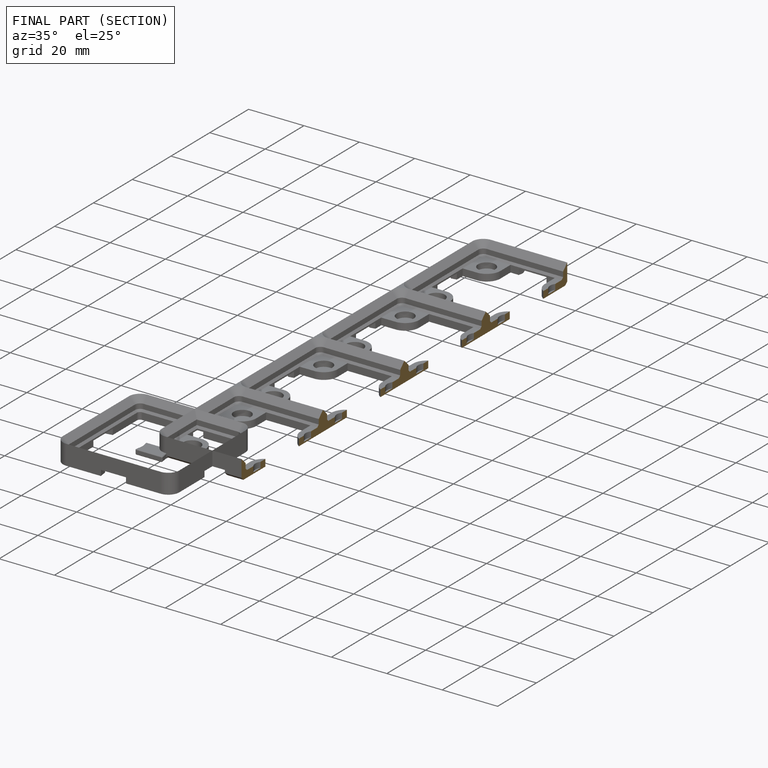
[diagram: finished part — half-section view (interior)]
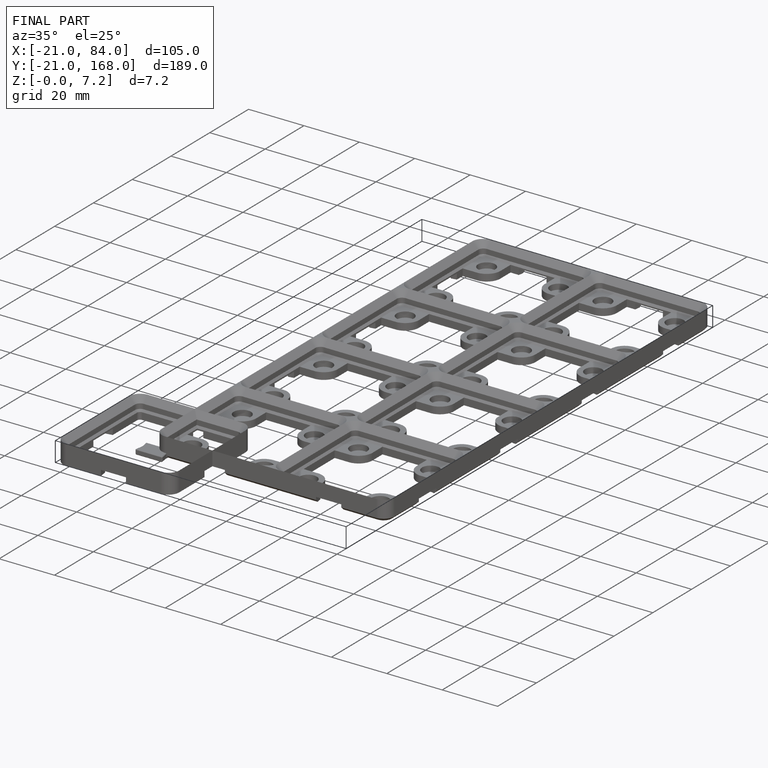
[diagram: finished part — iso view with bounding-box wireframe]
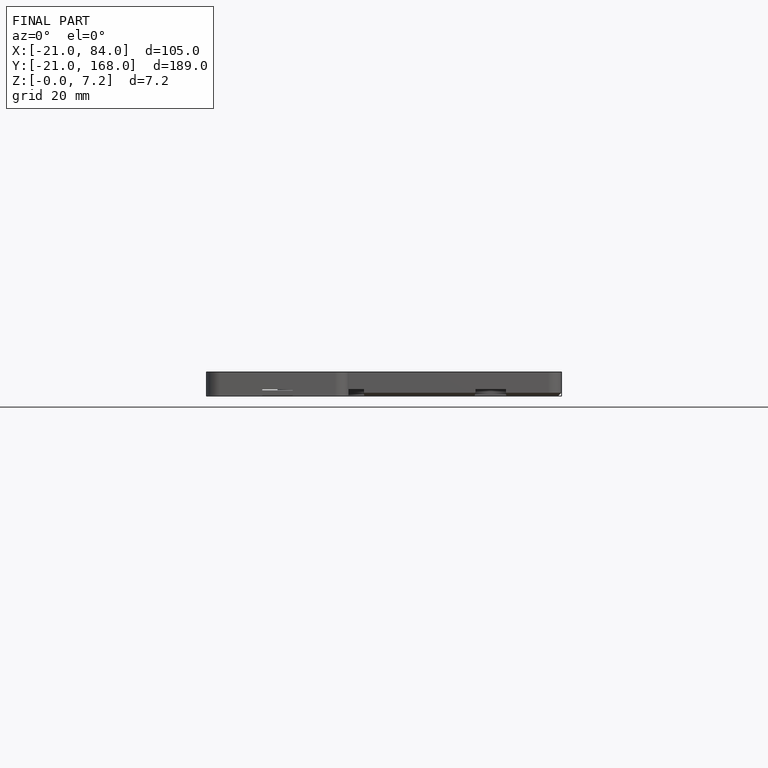
[diagram: finished part — front view with bounding-box wireframe]
